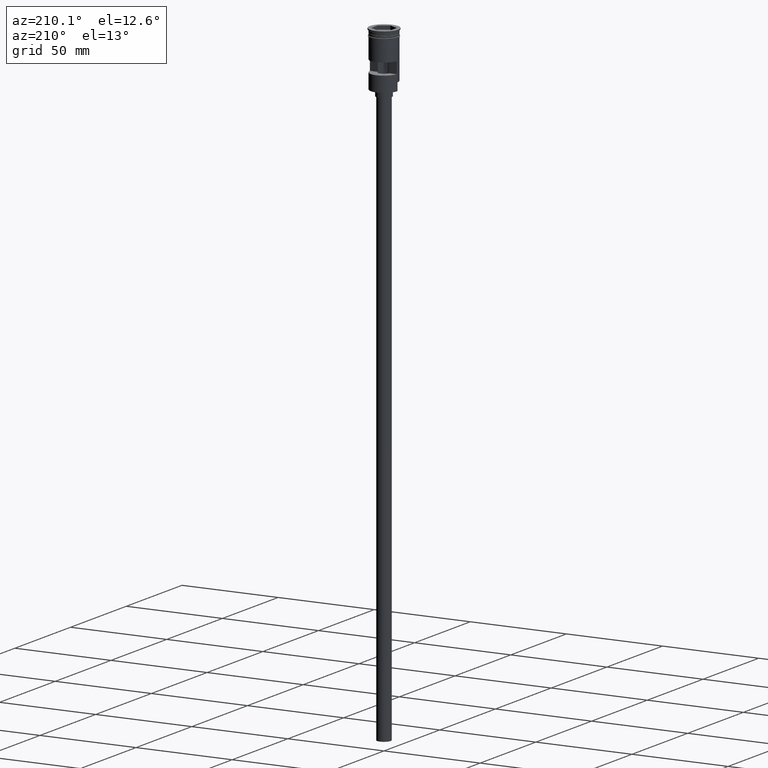
[diagram: clean part render]
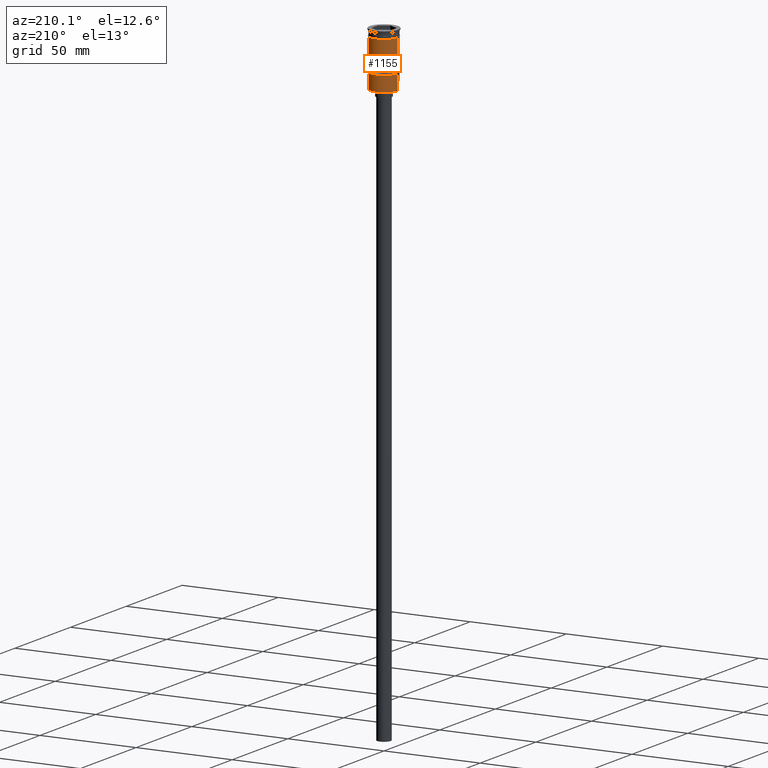
[diagram: same view with one face highlighted and labeled with its STEP entity id]
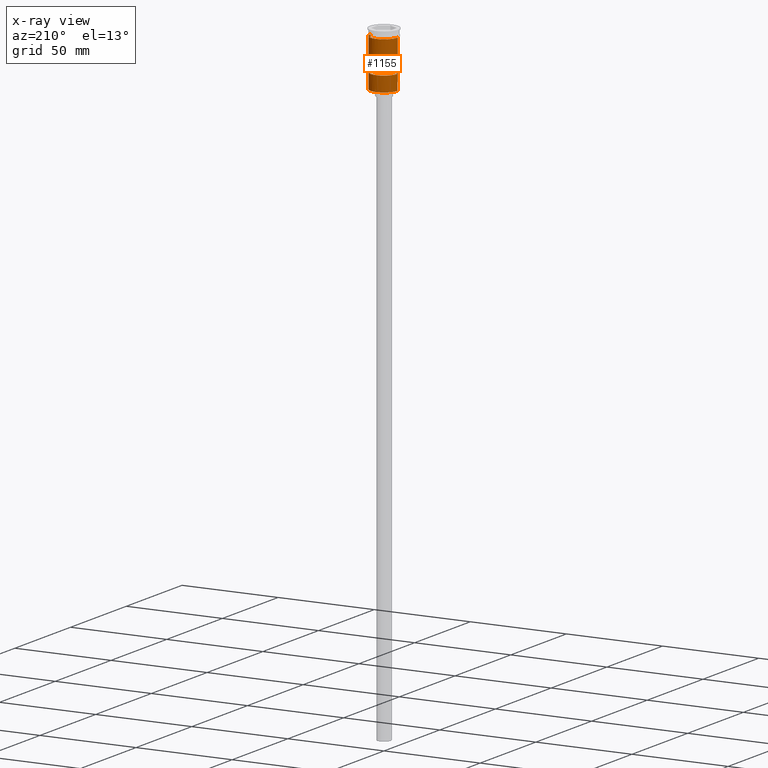
[diagram: x-ray of the same camera — body ghosted, the highlighted face saturated]
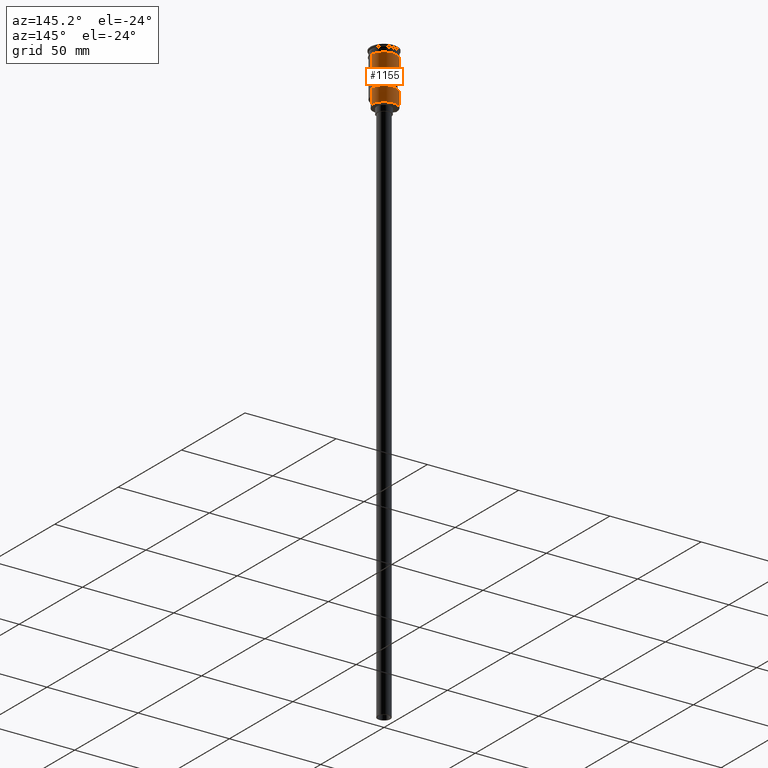
[diagram: same view with one face highlighted and labeled with its STEP entity id]
A machine part, auxiliary view. The second image highlights one B-rep face of the part: STEP entity #1155.
The next image is the same camera in x-ray: the body ghosted, the highlighted face saturated — about 0% of this face is hidden behind the body in this view.
A second angle (auxiliary view) of the same face is appended — the face is thin or edge-on in the first view.
In plain terms, the highlighted cylindrical surface (edge-blend (fillet) strip) has radius 7 mm, axis along (-0, -0, 1).
Its self-contained STEP definition (entity closure, byte-faithful):
#32 = VERTEX_POINT ( 'NONE', #1466 ) ;
#38 = EDGE_CURVE ( 'NONE', #342, #506, #1357, .T. ) ;
#48 = CARTESIAN_POINT ( 'NONE',  ( -6.999999999999996447, 8.572527594031468259E-16, 0.000000000000000000 ) ) ;
#91 = EDGE_CURVE ( 'NONE', #320, #531, #111, .T. ) ;
#94 = ORIENTED_EDGE ( 'NONE', *, *, #1349, .F. ) ;
#96 = CARTESIAN_POINT ( 'NONE',  ( 0.000000000000000000, 0.000000000000000000, -3.799999999999998490 ) ) ;
#111 = CIRCLE ( 'NONE', #1564, 6.999999999999996447 ) ;
#117 = VECTOR ( 'NONE', #1395, 1000.000000000000000 ) ;
#135 = CARTESIAN_POINT ( 'NONE',  ( 0.000000000000000000, 0.000000000000000000, -20.50000000000000000 ) ) ;
#149 = DIRECTION ( 'NONE',  ( -0.000000000000000000, -0.000000000000000000, 1.000000000000000000 ) ) ;
#165 = VERTEX_POINT ( 'NONE', #378 ) ;
#175 = DIRECTION ( 'NONE',  ( -0.000000000000000000, -0.000000000000000000, 1.000000000000000000 ) ) ;
#204 = CARTESIAN_POINT ( 'NONE',  ( 6.974238309665075519, 0.5999999999999999778, -14.50000000000000178 ) ) ;
#209 = DIRECTION ( 'NONE',  ( -0.000000000000000000, -0.000000000000000000, 1.000000000000000000 ) ) ;
#285 = LINE ( 'NONE', #48, #117 ) ;
#292 = FACE_BOUND ( 'NONE', #1035, .T. ) ;
#306 = ORIENTED_EDGE ( 'NONE', *, *, #91, .F. ) ;
#320 = VERTEX_POINT ( 'NONE', #769 ) ;
#340 = DIRECTION ( 'NONE',  ( 1.000000000000000000, 0.000000000000000000, 0.000000000000000000 ) ) ;
#342 = VERTEX_POINT ( 'NONE', #420 ) ;
#350 = CARTESIAN_POINT ( 'NONE',  ( 0.000000000000000000, 0.000000000000000000, -14.50000000000000178 ) ) ;
#363 = DIRECTION ( 'NONE',  ( -0.000000000000000000, -0.000000000000000000, 1.000000000000000000 ) ) ;
#378 = CARTESIAN_POINT ( 'NONE',  ( 6.999999999999999112, 0.000000000000000000, -3.799999999999998490 ) ) ;
#406 = VERTEX_POINT ( 'NONE', #1327 ) ;
#418 = EDGE_CURVE ( 'NONE', #406, #165, #1550, .T. ) ;
#420 = CARTESIAN_POINT ( 'NONE',  ( -6.974238309665074631, 0.5999999999999999778, -14.50000000000000178 ) ) ;
#480 = LINE ( 'NONE', #602, #699 ) ;
#503 = CARTESIAN_POINT ( 'NONE',  ( -6.999999999999993783, 0.000000000000000000, -28.30000000000002203 ) ) ;
#506 = VERTEX_POINT ( 'NONE', #204 ) ;
#507 = CYLINDRICAL_SURFACE ( 'NONE', #1339, 6.999999999999996447 ) ;
#520 = CARTESIAN_POINT ( 'NONE',  ( 0.000000000000000000, 0.000000000000000000, -28.30000000000002203 ) ) ;
#531 = VERTEX_POINT ( 'NONE', #848 ) ;
#572 = CIRCLE ( 'NONE', #1486, 6.999999999999996447 ) ;
#576 = ORIENTED_EDGE ( 'NONE', *, *, #663, .T. ) ;
#602 = CARTESIAN_POINT ( 'NONE',  ( 6.974238309665074631, 0.5999999999999999778, 0.000000000000000000 ) ) ;
#614 = ORIENTED_EDGE ( 'NONE', *, *, #646, .F. ) ;
#615 = VECTOR ( 'NONE', #209, 1000.000000000000000 ) ;
#642 = EDGE_CURVE ( 'NONE', #531, #342, #1469, .T. ) ;
#646 = EDGE_CURVE ( 'NONE', #32, #406, #863, .T. ) ;
#657 = VERTEX_POINT ( 'NONE', #503 ) ;
#663 = EDGE_CURVE ( 'NONE', #657, #1424, #1161, .T. ) ;
#699 = VECTOR ( 'NONE', #1235, 1000.000000000000000 ) ;
#720 = DIRECTION ( 'NONE',  ( 0.000000000000000000, 1.000000000000000000, 4.956352788505165240E-16 ) ) ;
#756 = FACE_OUTER_BOUND ( 'NONE', #801, .T. ) ;
#758 = DIRECTION ( 'NONE',  ( 0.000000000000000000, 0.000000000000000000, 1.000000000000000000 ) ) ;
#767 = CARTESIAN_POINT ( 'NONE',  ( -6.999999999999993783, 0.000000000000000000, -24.30000000000006466 ) ) ;
#769 = CARTESIAN_POINT ( 'NONE',  ( 6.974238309665075519, 0.5999999999999999778, -20.50000000000000000 ) ) ;
#801 = EDGE_LOOP ( 'NONE', ( #576, #1575, #94, #1331, #614, #1063 ) ) ;
#848 = CARTESIAN_POINT ( 'NONE',  ( -6.974238309665074631, 0.5999999999999999778, -20.50000000000000000 ) ) ;
#857 = VECTOR ( 'NONE', #175, 1000.000000000000000 ) ;
#863 = LINE ( 'NONE', #1402, #1359 ) ;
#871 = DIRECTION ( 'NONE',  ( -0.000000000000000000, -5.421010862427526114E-16, 1.000000000000000000 ) ) ;
#873 = CARTESIAN_POINT ( 'NONE',  ( 0.000000000000000000, 0.000000000000000000, 0.000000000000000000 ) ) ;
#952 = DIRECTION ( 'NONE',  ( 0.000000000000000000, -1.000000000000000000, 2.478176394252582620E-16 ) ) ;
#962 = ORIENTED_EDGE ( 'NONE', *, *, #995, .F. ) ;
#983 = CARTESIAN_POINT ( 'NONE',  ( -6.974238309665074631, 0.5999999999999999778, 0.000000000000000000 ) ) ;
#995 = EDGE_CURVE ( 'NONE', #506, #320, #480, .T. ) ;
#1028 = DIRECTION ( 'NONE',  ( -0.000000000000000000, -0.000000000000000000, 1.000000000000000000 ) ) ;
#1035 = EDGE_LOOP ( 'NONE', ( #306, #962, #1444, #1255 ) ) ;
#1037 = CARTESIAN_POINT ( 'NONE',  ( -6.999999999999993783, 0.000000000000000000, -28.50000000000000000 ) ) ;
#1063 = ORIENTED_EDGE ( 'NONE', *, *, #1430, .T. ) ;
#1087 = CARTESIAN_POINT ( 'NONE',  ( 6.999999999999996447, 0.000000000000000000, 0.000000000000000000 ) ) ;
#1150 = VECTOR ( 'NONE', #363, 1000.000000000000000 ) ;
#1155 = ADVANCED_FACE ( 'NONE', ( #292, #756 ), #507, .T. ) ;
#1158 = VERTEX_POINT ( 'NONE', #1166 ) ;
#1161 = LINE ( 'NONE', #1037, #857 ) ;
#1166 = CARTESIAN_POINT ( 'NONE',  ( -7.000000000000000000, 8.572527594031472204E-16, -3.799999999999998490 ) ) ;
#1235 = DIRECTION ( 'NONE',  ( 0.000000000000000000, 0.000000000000000000, -1.000000000000000000 ) ) ;
#1255 = ORIENTED_EDGE ( 'NONE', *, *, #642, .F. ) ;
#1285 = DIRECTION ( 'NONE',  ( -1.000000000000000000, 0.000000000000000000, 0.000000000000000000 ) ) ;
#1313 = AXIS2_PLACEMENT_3D ( 'NONE', #96, #1580, #340 ) ;
#1321 = DIRECTION ( 'NONE',  ( -0.000000000000000000, -2.710505431213763057E-16, -1.000000000000000000 ) ) ;
#1327 = CARTESIAN_POINT ( 'NONE',  ( 6.999999999999996447, 8.572527594031468259E-16, -24.30000000000006466 ) ) ;
#1331 = ORIENTED_EDGE ( 'NONE', *, *, #418, .F. ) ;
#1339 = AXIS2_PLACEMENT_3D ( 'NONE', #873, #149, #1516 ) ;
#1349 = EDGE_CURVE ( 'NONE', #165, #1158, #1593, .T. ) ;
#1357 = CIRCLE ( 'NONE', #1434, 6.999999999999996447 ) ;
#1359 = VECTOR ( 'NONE', #1028, 1000.000000000000000 ) ;
#1389 = EDGE_CURVE ( 'NONE', #1424, #1158, #285, .T. ) ;
#1395 = DIRECTION ( 'NONE',  ( -0.000000000000000000, -0.000000000000000000, 1.000000000000000000 ) ) ;
#1402 = CARTESIAN_POINT ( 'NONE',  ( 6.999999999999993783, 8.572527594031465301E-16, -28.50000000000000000 ) ) ;
#1424 = VERTEX_POINT ( 'NONE', #767 ) ;
#1430 = EDGE_CURVE ( 'NONE', #32, #657, #572, .T. ) ;
#1434 = AXIS2_PLACEMENT_3D ( 'NONE', #350, #1321, #952 ) ;
#1444 = ORIENTED_EDGE ( 'NONE', *, *, #38, .F. ) ;
#1466 = CARTESIAN_POINT ( 'NONE',  ( 6.999999999999993783, 8.572527594031465301E-16, -28.30000000000002203 ) ) ;
#1469 = LINE ( 'NONE', #983, #1150 ) ;
#1486 = AXIS2_PLACEMENT_3D ( 'NONE', #520, #758, #1285 ) ;
#1516 = DIRECTION ( 'NONE',  ( 1.000000000000000000, 0.000000000000000000, 0.000000000000000000 ) ) ;
#1550 = LINE ( 'NONE', #1087, #615 ) ;
#1564 = AXIS2_PLACEMENT_3D ( 'NONE', #135, #871, #720 ) ;
#1575 = ORIENTED_EDGE ( 'NONE', *, *, #1389, .T. ) ;
#1580 = DIRECTION ( 'NONE',  ( -0.000000000000000000, -0.000000000000000000, 1.000000000000000000 ) ) ;
#1593 = CIRCLE ( 'NONE', #1313, 6.999999999999999112 ) ;